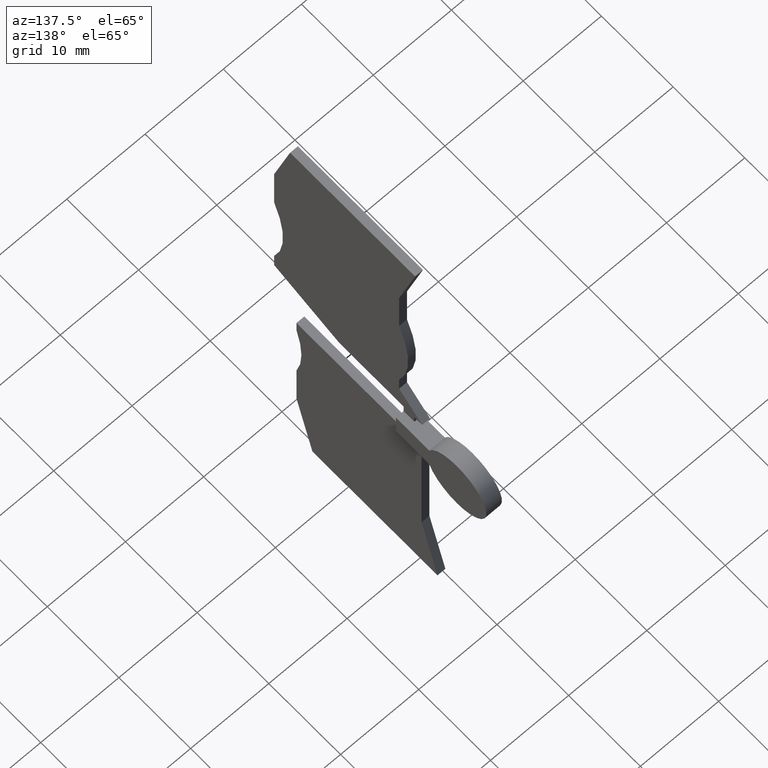
[diagram: clean part render]
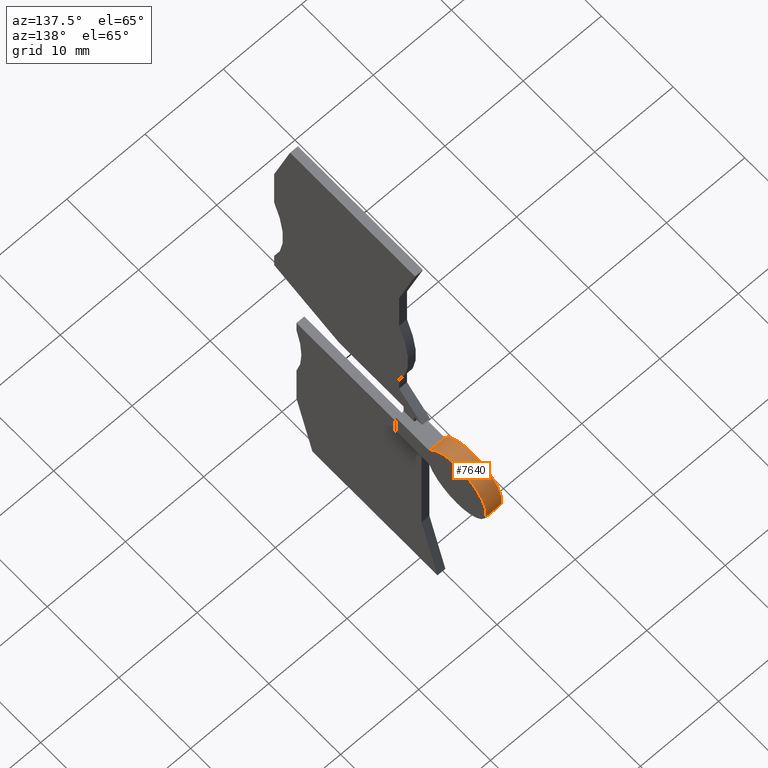
[diagram: same view with one face highlighted and labeled with its STEP entity id]
A machine part, auxiliary view. The second image highlights one B-rep face of the part: STEP entity #7640.
In plain terms, the highlighted cylindrical surface (partial cylindrical patch) has radius 4.125 mm, axis along (-1, 0, -0).
Its self-contained STEP definition (entity closure, byte-faithful):
#6000=CARTESIAN_POINT('',(8.18518711016459,-16.8833568228378,
4.70000000003257));
#6010=VERTEX_POINT('',#6000);
#6040=CARTESIAN_POINT('',(4.34260491212486,-15.3833568228378,
4.70000000003257));
#6050=DIRECTION('',(0.,0.,1.));
#6060=DIRECTION('',(6.12323399573677E-17,-1.,0.));
#6070=AXIS2_PLACEMENT_3D('',#6040,#6050,#6060);
#6080=CIRCLE('',#6070,4.12497732705185);
#6090=CARTESIAN_POINT('',(8.18518711016458,-13.8833568228378,
4.70000000003257));
#6100=VERTEX_POINT('',#6090);
#6110=EDGE_CURVE('',#6100,#6010,#6080,.T.);
#7330=CARTESIAN_POINT('',(4.34260491212486,-15.3833568228378,
2.70000000003257));
#7340=DIRECTION('',(0.,0.,1.));
#7350=DIRECTION('',(6.12323399573677E-17,-1.,0.));
#7360=AXIS2_PLACEMENT_3D('',#7330,#7340,#7350);
#7370=CYLINDRICAL_SURFACE('',#7360,4.12497732705185);
#7380=CARTESIAN_POINT('',(8.18518711016458,-13.8833568228378,
2.70000000003257));
#7390=DIRECTION('',(0.,0.,1.));
#7400=VECTOR('',#7390,1.);
#7410=LINE('',#7380,#7400);
#7420=CARTESIAN_POINT('',(8.18518711016485,-13.8833568228378,
2.70000000003257));
#7430=VERTEX_POINT('',#7420);
#7440=EDGE_CURVE('',#7430,#6100,#7410,.T.);
#7450=ORIENTED_EDGE('',*,*,#7440,.F.);
#7460=ORIENTED_EDGE('',*,*,#6110,.F.);
#7470=CARTESIAN_POINT('',(8.18518711016459,-16.8833568228378,
2.70000000003257));
#7480=DIRECTION('',(0.,0.,1.));
#7490=VECTOR('',#7480,1.);
#7500=LINE('',#7470,#7490);
#7510=CARTESIAN_POINT('',(8.18518711016486,-16.8833568228378,
2.70000000003257));
#7520=VERTEX_POINT('',#7510);
#7530=EDGE_CURVE('',#7520,#6010,#7500,.T.);
#7540=ORIENTED_EDGE('',*,*,#7530,.T.);
#7550=CARTESIAN_POINT('',(4.34260491212486,-15.3833568228378,
2.70000000003256));
#7560=DIRECTION('',(-6.1232339957367E-17,6.1232339957367E-17,-1.));
#7570=DIRECTION('',(-1.93617541585409E-33,1.,6.1232339957367E-17));
#7580=AXIS2_PLACEMENT_3D('',#7550,#7560,#7570);
#7590=CIRCLE('',#7580,4.12497732705185);
#7600=EDGE_CURVE('',#7520,#7430,#7590,.T.);
#7610=ORIENTED_EDGE('',*,*,#7600,.F.);
#7620=EDGE_LOOP('',(#7610,#7540,#7460,#7450));
#7630=FACE_OUTER_BOUND('',#7620,.T.);
#7640=ADVANCED_FACE('',(#7630),#7370,.T.);